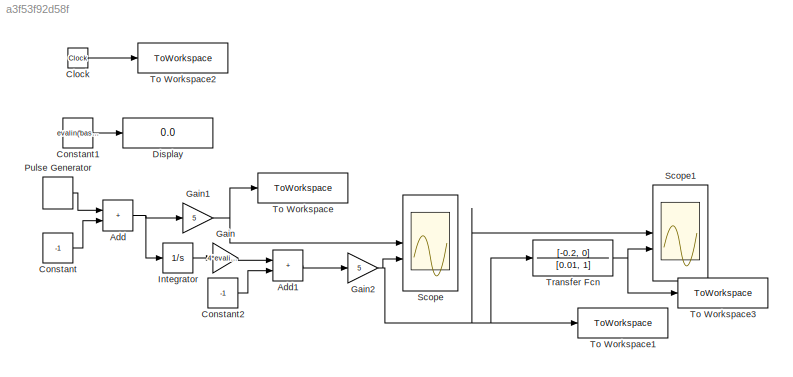
MODEL slx_a3f53f92d58f
KIND model
CONFIG AbsTol = auto
CONFIG EnableMultiTasking = off
CONFIG FixedStep = auto
CONFIG MaxStep = 1e-3
CONFIG MinStep = 1e-4
CONFIG RelTol = 1e-3
CONFIG SampleTimeConstraint = Unconstrained
CONFIG SolverName = VariableStepAuto
CONFIG StartTime = 0.0
CONFIG StopTime = 10.0
BLOCK [Sum] Add
  IconShape = rectangular
BLOCK [Sum] Add1
  IconShape = rectangular
BLOCK [Clock] Clock
BLOCK [Constant] Constant
  Value = -1
BLOCK [Constant] Constant1
  Value = evalin('base', 'f')
BLOCK [Constant] Constant2
  Value = -1
BLOCK [Display] Display
  Decimation = 1
BLOCK [Gain] Gain
  Gain = 4*evalin('base', 'f')
BLOCK [Gain] Gain1
  Gain = 5
BLOCK [Gain] Gain2
  Gain = 5
BLOCK [Integrator] Integrator
BLOCK [DiscretePulseGenerator] Pulse Generator
  Amplitude = 2
  Period = evalin('base', '1/f')
  PulseType = Time based
  PulseWidth = 50
BLOCK [Scope] Scope
  Floating = off
  NameLocation = right
  NumInputPorts = 2
  ScopeSpecificationString = Simulink.scopes.TimeScopeBlockCfg('CurrentConfiguration', extmgr.ConfigurationSet(extmgr.Configuration('Core','General UI',true),extmgr.Configuration('Core','Source UI',true),extmgr.Configuration('Sources','WiredSimulink',true,'DataLoggingVariableName','ScopeData1'),extmgr.Configuration('Visuals','Time Domain',true,'SerializedDisplays',{struct('MinYLimReal','-6.25','MaxYLimReal','6.25','YLabelReal...<+1410ch>
BLOCK [Scope] Scope1
  Floating = off
  NameLocation = right
  NumInputPorts = 2
  ScopeSpecificationString = Simulink.scopes.TimeScopeBlockCfg('CurrentConfiguration', extmgr.ConfigurationSet(extmgr.Configuration('Core','General UI',true),extmgr.Configuration('Core','Source UI',true),extmgr.Configuration('Sources','WiredSimulink',true),extmgr.Configuration('Visuals','Time Domain',true,'SerializedDisplays',{struct('MinYLimReal','-18.125','MaxYLimReal','113.125','YLabelReal','','MinYLimMag','0.00000','MaxYL...<+1390ch>
BLOCK [ToWorkspace] To Workspace
  FixptAsFi = on
  MaxDataPoints = inf
  SampleTime = -1
  VariableName = squareWave
BLOCK [ToWorkspace] To Workspace1
  FixptAsFi = on
  MaxDataPoints = inf
  SampleTime = -1
  VariableName = triangleWave
BLOCK [ToWorkspace] To Workspace2
  FixptAsFi = on
  MaxDataPoints = inf
  SampleTime = -1
  VariableName = time
BLOCK [ToWorkspace] To Workspace3
  FixptAsFi = on
  MaxDataPoints = inf
  SampleTime = -1
  VariableName = diff_result
BLOCK [TransferFcn] Transfer Fcn
  Denominator = [0.01, 1]
  Numerator = [-0.2, 0]
LINE Add1:1 -> Gain2:1
NET Add:1 -> Gain1:1, Integrator:1
LINE Clock:1 -> To Workspace2:1
LINE Constant1:1 -> Display:1
LINE Constant2:1 -> Add1:2
LINE Constant:1 -> Add:2
NET Gain1:1 -> Scope:1, To Workspace:1
NET Gain2:1 -> Scope1:1, Scope:2, To Workspace1:1, Transfer Fcn:1
LINE Gain:1 -> Add1:1
LINE Integrator:1 -> Gain:1
LINE Pulse Generator:1 -> Add:1
NET Transfer Fcn:1 -> Scope1:2, To Workspace3:1
note: NET lines group one-source signal fan-out (src -> all destinations, sorted); 1:1 wires keep LINE
